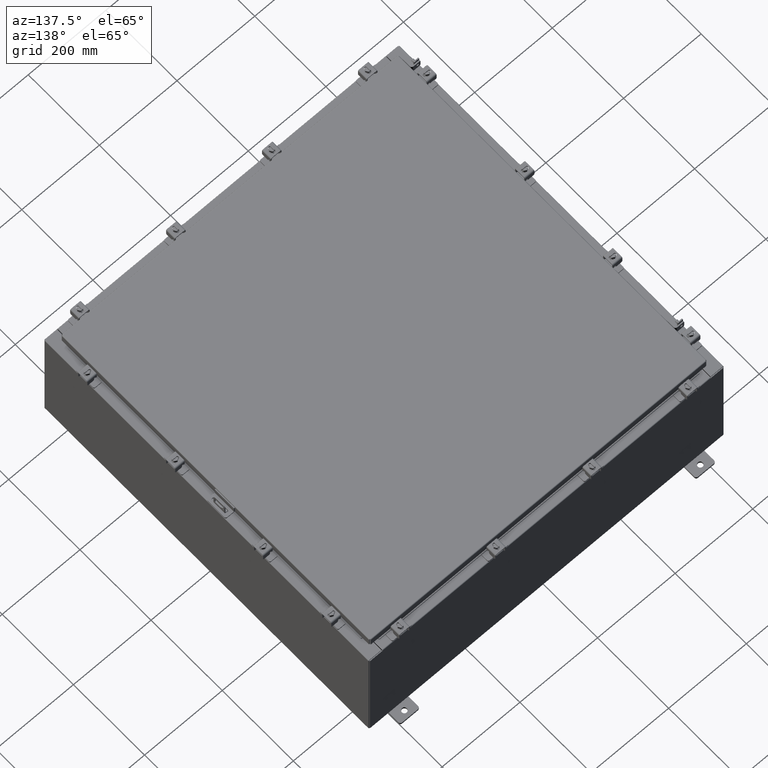
[diagram: clean part render]
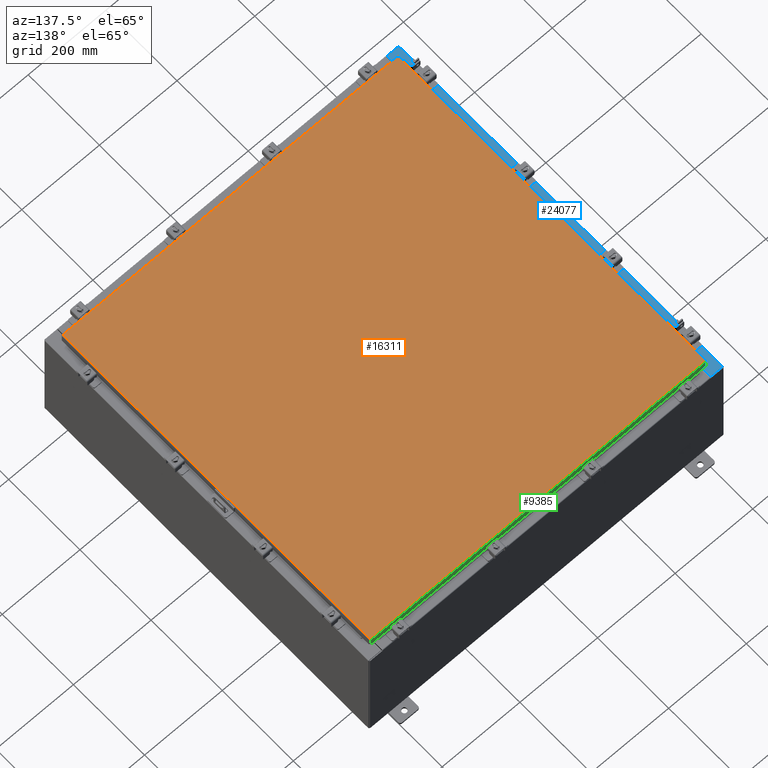
[diagram: same view with three faces highlighted in distinct colors, each labeled with its STEP entity id]
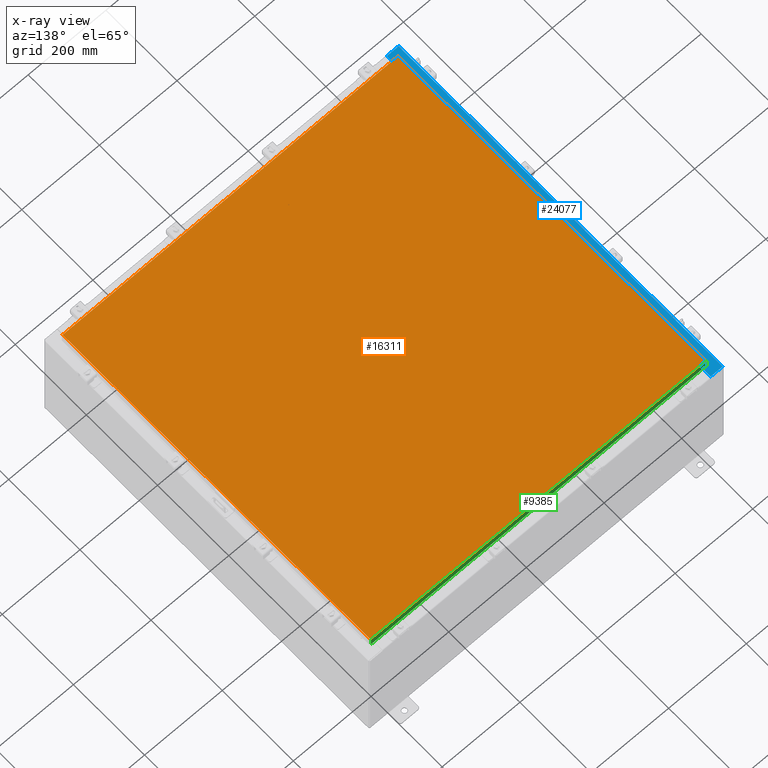
[diagram: x-ray of the same camera — body ghosted, the three highlighted faces saturated]
A machine part, auxiliary view with three faces highlighted in distinct colors.
The next image is the same camera in x-ray (body ghosted, the three faces saturated) — at least one of them is partly hidden behind the body in this view.
Their STEP definitions:

[orange] entity #16311 — the highlighted planar face has unit normal (0, 0, -1).
#715 = DIRECTION ( 'NONE',  ( -1.000000000000000000, -0.0000000000000000000, -0.0000000000000000000 ) ) ;
#1357 = EDGE_CURVE ( 'NONE', #3781, #6427, #19354, .T. ) ;
#1801 = CARTESIAN_POINT ( 'NONE',  ( 17.00630000000000000, -17.00630000000000000, 0.0000000000000000000 ) ) ;
#2096 = CARTESIAN_POINT ( 'NONE',  ( -17.00630000000000000, 17.00630000000000000, 0.0000000000000000000 ) ) ;
#2319 = VECTOR ( 'NONE', #715, 39.37007874015748100 ) ;
#2437 = VERTEX_POINT ( 'NONE', #6190 ) ;
#2673 = ORIENTED_EDGE ( 'NONE', *, *, #11967, .T. ) ;
#2737 = VECTOR ( 'NONE', #4021, 39.37007874015748100 ) ;
#3781 = VERTEX_POINT ( 'NONE', #1801 ) ;
#3955 = VERTEX_POINT ( 'NONE', #2096 ) ;
#4021 = DIRECTION ( 'NONE',  ( 0.0000000000000000000, 1.000000000000000000, 0.0000000000000000000 ) ) ;
#5462 = AXIS2_PLACEMENT_3D ( 'NONE', #5748, #9943, #24749 ) ;
#5748 = CARTESIAN_POINT ( 'NONE',  ( 0.0000000000000000000, 0.0000000000000000000, 0.0000000000000000000 ) ) ;
#5991 = EDGE_CURVE ( 'NONE', #2437, #3781, #21502, .T. ) ;
#6190 = CARTESIAN_POINT ( 'NONE',  ( -17.00630000000000000, -17.00630000000000000, 0.0000000000000000000 ) ) ;
#6427 = VERTEX_POINT ( 'NONE', #25244 ) ;
#7775 = LINE ( 'NONE', #15237, #2319 ) ;
#9673 = FACE_OUTER_BOUND ( 'NONE', #15623, .T. ) ;
#9860 = PLANE ( 'NONE',  #5462 ) ;
#9943 = DIRECTION ( 'NONE',  ( 0.0000000000000000000, 0.0000000000000000000, -1.000000000000000000 ) ) ;
#11967 = EDGE_CURVE ( 'NONE', #6427, #3955, #7775, .T. ) ;
#13080 = CARTESIAN_POINT ( 'NONE',  ( -17.00630000000000000, -17.00630000000000000, 0.0000000000000000000 ) ) ;
#13367 = DIRECTION ( 'NONE',  ( 1.000000000000000000, -0.0000000000000000000, -0.0000000000000000000 ) ) ;
#15237 = CARTESIAN_POINT ( 'NONE',  ( 17.00630000000000000, 17.00630000000000000, 0.0000000000000000000 ) ) ;
#15623 = EDGE_LOOP ( 'NONE', ( #19268, #24854, #2673, #17425 ) ) ;
#16311 = ADVANCED_FACE ( 'NONE', ( #9673 ), #9860, .F. ) ;
#17425 = ORIENTED_EDGE ( 'NONE', *, *, #26838, .T. ) ;
#18877 = CARTESIAN_POINT ( 'NONE',  ( 17.00630000000000000, -17.00630000000000000, 0.0000000000000000000 ) ) ;
#19268 = ORIENTED_EDGE ( 'NONE', *, *, #5991, .T. ) ;
#19354 = LINE ( 'NONE', #18877, #2737 ) ;
#20790 = LINE ( 'NONE', #22610, #26461 ) ;
#21502 = LINE ( 'NONE', #13080, #27172 ) ;
#22610 = CARTESIAN_POINT ( 'NONE',  ( -17.00630000000000000, 17.00630000000000000, 0.0000000000000000000 ) ) ;
#24749 = DIRECTION ( 'NONE',  ( -1.000000000000000000, 0.0000000000000000000, -0.0000000000000000000 ) ) ;
#24753 = DIRECTION ( 'NONE',  ( 0.0000000000000000000, -1.000000000000000000, 0.0000000000000000000 ) ) ;
#24854 = ORIENTED_EDGE ( 'NONE', *, *, #1357, .T. ) ;
#25244 = CARTESIAN_POINT ( 'NONE',  ( 17.00630000000000000, 17.00630000000000000, 0.0000000000000000000 ) ) ;
#26461 = VECTOR ( 'NONE', #24753, 39.37007874015748100 ) ;
#26838 = EDGE_CURVE ( 'NONE', #3955, #2437, #20790, .T. ) ;
#27172 = VECTOR ( 'NONE', #13367, 39.37007874015748100 ) ;

[blue] entity #24077 — the highlighted planar face has unit normal (0, 0, -1).
#148 = LINE ( 'NONE', #25722, #5609 ) ;
#434 = CARTESIAN_POINT ( 'NONE',  ( -16.71270000000004400, -16.59375000000000000, 11.92530000000001200 ) ) ;
#771 = DIRECTION ( 'NONE',  ( -0.0000000000000000000, -1.000000000000000000, -0.0000000000000000000 ) ) ;
#847 = PLANE ( 'NONE',  #1294 ) ;
#1156 = DIRECTION ( 'NONE',  ( -0.0000000000000000000, 1.000000000000000000, -0.0000000000000000000 ) ) ;
#1163 = CARTESIAN_POINT ( 'NONE',  ( -8.532114493236880700E-014, -17.92530000000000000, 11.92530000000013000 ) ) ;
#1294 = AXIS2_PLACEMENT_3D ( 'NONE', #25975, #17484, #4964 ) ;
#1906 = AXIS2_PLACEMENT_3D ( 'NONE', #14403, #1994, #16509 ) ;
#1949 = DIRECTION ( 'NONE',  ( 1.000000000000000000, -0.0000000000000000000, 7.132762385546384700E-015 ) ) ;
#1994 = DIRECTION ( 'NONE',  ( -7.132762385546384700E-015, -0.0000000000000000000, 1.000000000000000000 ) ) ;
#2365 = CARTESIAN_POINT ( 'NONE',  ( -16.75005000000004100, -16.61242500000000200, 11.92530000000001200 ) ) ;
#2699 = VERTEX_POINT ( 'NONE', #17383 ) ;
#3196 = ORIENTED_EDGE ( 'NONE', *, *, #9730, .F. ) ;
#3447 = ORIENTED_EDGE ( 'NONE', *, *, #17175, .T. ) ;
#3800 = EDGE_CURVE ( 'NONE', #24871, #2699, #15308, .T. ) ;
#4205 = VECTOR ( 'NONE', #1949, 39.37007874015748100 ) ;
#4384 = DIRECTION ( 'NONE',  ( 1.000000000000000000, 0.0000000000000000000, 0.0000000000000000000 ) ) ;
#4496 = CARTESIAN_POINT ( 'NONE',  ( -16.75005000000004100, 16.59375000000000000, 11.92530000000001200 ) ) ;
#4881 = LINE ( 'NONE', #25855, #19614 ) ;
#4964 = DIRECTION ( 'NONE',  ( -1.000000000000000000, 0.0000000000000000000, -7.132762385546384700E-015 ) ) ;
#5545 = ORIENTED_EDGE ( 'NONE', *, *, #6003, .T. ) ;
#5609 = VECTOR ( 'NONE', #10819, 39.37007874015748100 ) ;
#5668 = CARTESIAN_POINT ( 'NONE',  ( -17.91230000000004100, -17.92530000000000000, 11.92530000000000400 ) ) ;
#5798 = VECTOR ( 'NONE', #771, 39.37007874015748100 ) ;
#6003 = EDGE_CURVE ( 'NONE', #12886, #10250, #10938, .T. ) ;
#6029 = VERTEX_POINT ( 'NONE', #10997 ) ;
#6161 = CIRCLE ( 'NONE', #16000, 0.01867499999999949400 ) ;
#6787 = DIRECTION ( 'NONE',  ( 0.0000000000000000000, 1.000000000000000000, 0.0000000000000000000 ) ) ;
#7196 = VECTOR ( 'NONE', #12862, 39.37007874015748100 ) ;
#7506 = ORIENTED_EDGE ( 'NONE', *, *, #18248, .F. ) ;
#7521 = EDGE_LOOP ( 'NONE', ( #26089, #17135, #5545, #3196, #21401, #3447, #25615, #8151, #15221, #23101, #26744, #7506 ) ) ;
#8151 = ORIENTED_EDGE ( 'NONE', *, *, #11778, .F. ) ;
#8474 = LINE ( 'NONE', #13536, #19632 ) ;
#8809 = LINE ( 'NONE', #434, #14361 ) ;
#9264 = EDGE_CURVE ( 'NONE', #23520, #26284, #24708, .T. ) ;
#9301 = CARTESIAN_POINT ( 'NONE',  ( -16.71270000000004400, -16.59375000000000000, 11.92530000000001200 ) ) ;
#9730 = EDGE_CURVE ( 'NONE', #24871, #10250, #8474, .T. ) ;
#9914 = CIRCLE ( 'NONE', #1906, 0.01867499999999949400 ) ;
#10250 = VERTEX_POINT ( 'NONE', #25724 ) ;
#10819 = DIRECTION ( 'NONE',  ( -1.000000000000000000, -4.340572780400098900E-014, 4.340572780400098900E-014 ) ) ;
#10860 = CARTESIAN_POINT ( 'NONE',  ( -16.75005000000004100, -16.63110000000000000, 11.92530000000000900 ) ) ;
#10938 = LINE ( 'NONE', #12986, #16499 ) ;
#10997 = CARTESIAN_POINT ( 'NONE',  ( -16.69970000000004300, 16.63110000000000400, 11.92530000000000900 ) ) ;
#11334 = LINE ( 'NONE', #13148, #5798 ) ;
#11778 = EDGE_CURVE ( 'NONE', #15036, #21992, #6161, .T. ) ;
#12263 = EDGE_CURVE ( 'NONE', #21992, #16050, #24952, .T. ) ;
#12351 = DIRECTION ( 'NONE',  ( -1.000000000000000000, 0.0000000000000000000, -7.132762385546384700E-015 ) ) ;
#12862 = DIRECTION ( 'NONE',  ( 1.000000000000000000, 0.0000000000000000000, 0.0000000000000000000 ) ) ;
#12886 = VERTEX_POINT ( 'NONE', #22643 ) ;
#12960 = VECTOR ( 'NONE', #14200, 39.37007874015748100 ) ;
#12986 = CARTESIAN_POINT ( 'NONE',  ( -8.532114493236880700E-014, 17.92530000000000000, 11.92530000000013000 ) ) ;
#13148 = CARTESIAN_POINT ( 'NONE',  ( -16.71270000000004400, 16.59375000000000000, 11.92530000000001200 ) ) ;
#13442 = CARTESIAN_POINT ( 'NONE',  ( -16.75005000000004100, 16.63110000000000000, 11.92530000000000900 ) ) ;
#13520 = VECTOR ( 'NONE', #6787, 39.37007874015748100 ) ;
#13536 = CARTESIAN_POINT ( 'NONE',  ( -17.91230000000004100, 17.92530000000000000, 11.92530000000000400 ) ) ;
#13940 = FACE_OUTER_BOUND ( 'NONE', #7521, .T. ) ;
#14200 = DIRECTION ( 'NONE',  ( 1.000000000000000000, -4.340572780400098900E-014, -4.340572780400098900E-014 ) ) ;
#14270 = EDGE_CURVE ( 'NONE', #6029, #12886, #4881, .T. ) ;
#14361 = VECTOR ( 'NONE', #16970, 39.37007874015748100 ) ;
#14403 = CARTESIAN_POINT ( 'NONE',  ( -16.75005000000004100, 16.61242500000000200, 11.92530000000001200 ) ) ;
#15036 = VERTEX_POINT ( 'NONE', #22757 ) ;
#15161 = DIRECTION ( 'NONE',  ( 0.0000000000000000000, 1.000000000000000000, 0.0000000000000000000 ) ) ;
#15221 = ORIENTED_EDGE ( 'NONE', *, *, #20589, .F. ) ;
#15308 = LINE ( 'NONE', #1163, #4205 ) ;
#15324 = EDGE_CURVE ( 'NONE', #26284, #18063, #11334, .T. ) ;
#16000 = AXIS2_PLACEMENT_3D ( 'NONE', #2365, #16889, #4384 ) ;
#16050 = VERTEX_POINT ( 'NONE', #23923 ) ;
#16499 = VECTOR ( 'NONE', #12351, 39.37007874015748100 ) ;
#16509 = DIRECTION ( 'NONE',  ( 1.000000000000000000, 0.0000000000000000000, 0.0000000000000000000 ) ) ;
#16889 = DIRECTION ( 'NONE',  ( -7.132762385546384700E-015, -0.0000000000000000000, 1.000000000000000000 ) ) ;
#16970 = DIRECTION ( 'NONE',  ( -1.000000000000000000, 0.0000000000000000000, 0.0000000000000000000 ) ) ;
#17135 = ORIENTED_EDGE ( 'NONE', *, *, #14270, .T. ) ;
#17175 = EDGE_CURVE ( 'NONE', #2699, #16050, #25527, .T. ) ;
#17383 = CARTESIAN_POINT ( 'NONE',  ( -16.69970000000004300, -17.92530000000000000, 11.92530000000000900 ) ) ;
#17484 = DIRECTION ( 'NONE',  ( 7.132762385546384700E-015, 0.0000000000000000000, -1.000000000000000000 ) ) ;
#18063 = VERTEX_POINT ( 'NONE', #9301 ) ;
#18248 = EDGE_CURVE ( 'NONE', #18651, #23520, #9914, .T. ) ;
#18651 = VERTEX_POINT ( 'NONE', #13442 ) ;
#19614 = VECTOR ( 'NONE', #15161, 39.37007874015748100 ) ;
#19632 = VECTOR ( 'NONE', #1156, 39.37007874015748100 ) ;
#20589 = EDGE_CURVE ( 'NONE', #18063, #15036, #8809, .T. ) ;
#21309 = EDGE_CURVE ( 'NONE', #6029, #18651, #148, .T. ) ;
#21401 = ORIENTED_EDGE ( 'NONE', *, *, #3800, .T. ) ;
#21992 = VERTEX_POINT ( 'NONE', #10860 ) ;
#22283 = CARTESIAN_POINT ( 'NONE',  ( -16.75005000000004100, 16.59375000000000000, 11.92530000000000900 ) ) ;
#22643 = CARTESIAN_POINT ( 'NONE',  ( -16.69970000000004300, 17.92530000000000000, 11.92530000000000900 ) ) ;
#22679 = CARTESIAN_POINT ( 'NONE',  ( -16.75005000000004100, -16.63110000000000000, 11.92530000000001200 ) ) ;
#22757 = CARTESIAN_POINT ( 'NONE',  ( -16.75005000000004100, -16.59375000000000000, 11.92530000000000900 ) ) ;
#23101 = ORIENTED_EDGE ( 'NONE', *, *, #15324, .F. ) ;
#23520 = VERTEX_POINT ( 'NONE', #22283 ) ;
#23923 = CARTESIAN_POINT ( 'NONE',  ( -16.69970000000004300, -16.63110000000000400, 11.92530000000000900 ) ) ;
#24077 = ADVANCED_FACE ( 'NONE', ( #13940 ), #847, .F. ) ;
#24708 = LINE ( 'NONE', #4496, #7196 ) ;
#24871 = VERTEX_POINT ( 'NONE', #5668 ) ;
#24952 = LINE ( 'NONE', #22679, #12960 ) ;
#25332 = CARTESIAN_POINT ( 'NONE',  ( -16.71270000000004400, 16.59375000000000000, 11.92530000000001200 ) ) ;
#25527 = LINE ( 'NONE', #25728, #13520 ) ;
#25615 = ORIENTED_EDGE ( 'NONE', *, *, #12263, .F. ) ;
#25722 = CARTESIAN_POINT ( 'NONE',  ( -16.69970000000004300, 16.63110000000000400, 11.92530000000000900 ) ) ;
#25724 = CARTESIAN_POINT ( 'NONE',  ( -17.91230000000004100, 17.92530000000000000, 11.92530000000000400 ) ) ;
#25728 = CARTESIAN_POINT ( 'NONE',  ( -16.69970000000004300, 0.0000000000000000000, 11.92530000000000900 ) ) ;
#25855 = CARTESIAN_POINT ( 'NONE',  ( -16.69970000000004300, 0.0000000000000000000, 11.92530000000000900 ) ) ;
#25975 = CARTESIAN_POINT ( 'NONE',  ( -8.532114493236880700E-014, 0.0000000000000000000, 11.92530000000013000 ) ) ;
#26089 = ORIENTED_EDGE ( 'NONE', *, *, #21309, .F. ) ;
#26284 = VERTEX_POINT ( 'NONE', #25332 ) ;
#26744 = ORIENTED_EDGE ( 'NONE', *, *, #9264, .F. ) ;

[green] entity #9385 — the highlighted planar face has unit normal (0, -1, -0).
#719 = EDGE_CURVE ( 'NONE', #2837, #5249, #9544, .T. ) ;
#745 = DIRECTION ( 'NONE',  ( 3.378709304971506500E-031, -1.000000000000000000, -2.818880942772345100E-015 ) ) ;
#1088 = CARTESIAN_POINT ( 'NONE',  ( -17.09400000000000100, 17.09400000000000100, -0.8500000000000043100 ) ) ;
#1518 = ORIENTED_EDGE ( 'NONE', *, *, #14376, .F. ) ;
#2359 = VECTOR ( 'NONE', #17130, 39.37007874015748100 ) ;
#2722 = EDGE_CURVE ( 'NONE', #9197, #15488, #7815, .T. ) ;
#2837 = VERTEX_POINT ( 'NONE', #5272 ) ;
#4258 = EDGE_CURVE ( 'NONE', #5249, #17328, #23599, .T. ) ;
#4429 = ORIENTED_EDGE ( 'NONE', *, *, #19860, .F. ) ;
#4512 = CARTESIAN_POINT ( 'NONE',  ( -17.00515786437626900, 17.09400000000000100, -0.8500000000000043100 ) ) ;
#4594 = ORIENTED_EDGE ( 'NONE', *, *, #4258, .F. ) ;
#4760 = CARTESIAN_POINT ( 'NONE',  ( 0.0000000000000000000, 17.09400000000000100, 4.808052468849102900E-014 ) ) ;
#4828 = CARTESIAN_POINT ( 'NONE',  ( -17.09400000000000100, 17.09400000000000100, -0.8500000000000043100 ) ) ;
#5240 = CARTESIAN_POINT ( 'NONE',  ( 17.00515786437626900, 17.09400000000000100, -0.8499999999999999800 ) ) ;
#5249 = VERTEX_POINT ( 'NONE', #4512 ) ;
#5272 = CARTESIAN_POINT ( 'NONE',  ( -17.00515786437626900, 17.09400000000000100, -0.08770000000000026400 ) ) ;
#5811 = ORIENTED_EDGE ( 'NONE', *, *, #2722, .T. ) ;
#5904 = FACE_OUTER_BOUND ( 'NONE', #10541, .T. ) ;
#6683 = VERTEX_POINT ( 'NONE', #10428 ) ;
#7150 = VECTOR ( 'NONE', #15626, 39.37007874015748100 ) ;
#7815 = LINE ( 'NONE', #14967, #2359 ) ;
#8947 = PLANE ( 'NONE',  #20753 ) ;
#9197 = VERTEX_POINT ( 'NONE', #12594 ) ;
#9385 = ADVANCED_FACE ( 'NONE', ( #5904 ), #8947, .F. ) ;
#9544 = LINE ( 'NONE', #16214, #15115 ) ;
#10413 = CARTESIAN_POINT ( 'NONE',  ( -17.09400000000000100, 17.09400000000000100, -0.08770000000000026400 ) ) ;
#10428 = CARTESIAN_POINT ( 'NONE',  ( 16.25515786437626900, 17.09399999999998700, -0.8500000000000065300 ) ) ;
#10541 = EDGE_LOOP ( 'NONE', ( #12105, #5811, #1518, #4429, #4594, #11332 ) ) ;
#11332 = ORIENTED_EDGE ( 'NONE', *, *, #719, .F. ) ;
#12033 = LINE ( 'NONE', #1088, #7150 ) ;
#12105 = ORIENTED_EDGE ( 'NONE', *, *, #14063, .F. ) ;
#12594 = CARTESIAN_POINT ( 'NONE',  ( 17.00515786437626900, 17.09400000000000100, -0.08770000000000026400 ) ) ;
#13021 = VECTOR ( 'NONE', #14613, 39.37007874015748100 ) ;
#14063 = EDGE_CURVE ( 'NONE', #9197, #2837, #24330, .T. ) ;
#14072 = VECTOR ( 'NONE', #21045, 39.37007874015748100 ) ;
#14376 = EDGE_CURVE ( 'NONE', #6683, #15488, #12033, .T. ) ;
#14613 = DIRECTION ( 'NONE',  ( -1.000000000000000000, -3.378709304971507400E-031, -9.209576350126241600E-046 ) ) ;
#14967 = CARTESIAN_POINT ( 'NONE',  ( 17.00515786437626900, 17.09400000000000100, 4.808052468849102900E-014 ) ) ;
#15115 = VECTOR ( 'NONE', #23907, 39.37007874015748100 ) ;
#15273 = DIRECTION ( 'NONE',  ( 0.0000000000000000000, 2.818880942772345100E-015, -1.000000000000000000 ) ) ;
#15488 = VERTEX_POINT ( 'NONE', #5240 ) ;
#15626 = DIRECTION ( 'NONE',  ( 1.000000000000000000, -4.379057701015054300E-047, 1.198599505819701500E-016 ) ) ;
#16214 = CARTESIAN_POINT ( 'NONE',  ( -17.00515786437626900, 17.09400000000000100, -0.07470000000000015500 ) ) ;
#17130 = DIRECTION ( 'NONE',  ( 0.0000000000000000000, 2.818880942772345500E-015, -1.000000000000000000 ) ) ;
#17328 = VERTEX_POINT ( 'NONE', #23956 ) ;
#19682 = LINE ( 'NONE', #23107, #14072 ) ;
#19860 = EDGE_CURVE ( 'NONE', #17328, #6683, #19682, .T. ) ;
#20753 = AXIS2_PLACEMENT_3D ( 'NONE', #4760, #745, #15273 ) ;
#21045 = DIRECTION ( 'NONE',  ( 1.000000000000000000, -0.0000000000000000000, -0.0000000000000000000 ) ) ;
#21493 = DIRECTION ( 'NONE',  ( 1.000000000000000000, -4.379057701015054300E-047, 1.198599505819701500E-016 ) ) ;
#22267 = VECTOR ( 'NONE', #21493, 39.37007874015748100 ) ;
#23107 = CARTESIAN_POINT ( 'NONE',  ( -16.25515786437626900, 17.09399999999998700, -0.8500000000000065300 ) ) ;
#23599 = LINE ( 'NONE', #4828, #22267 ) ;
#23907 = DIRECTION ( 'NONE',  ( -0.0000000000000000000, 2.818880942772345500E-015, -1.000000000000000000 ) ) ;
#23956 = CARTESIAN_POINT ( 'NONE',  ( -16.25515786437626500, 17.09399999999998700, -0.8500000000000065300 ) ) ;
#24330 = LINE ( 'NONE', #10413, #13021 ) ;